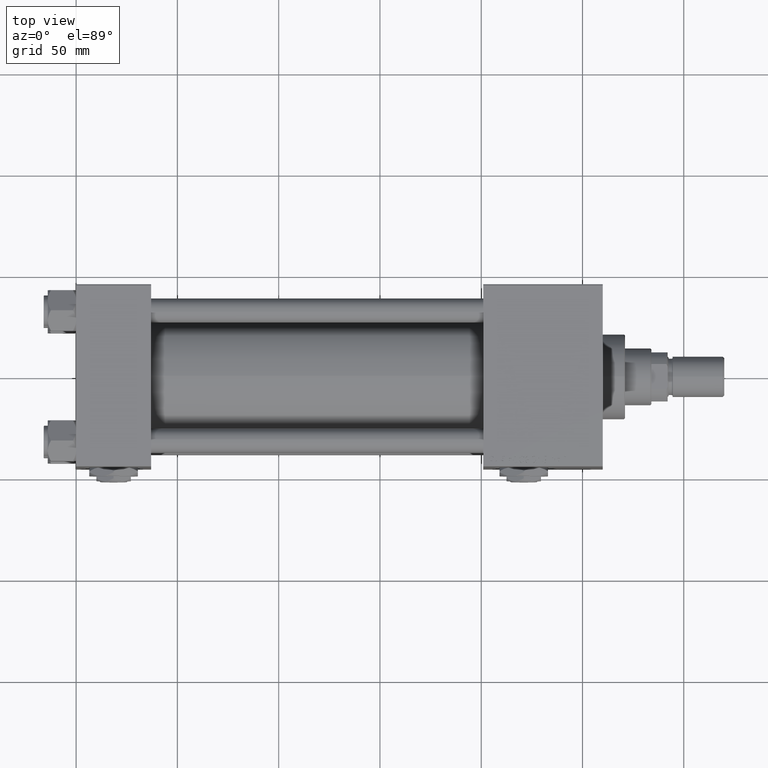
[diagram: clean part render]
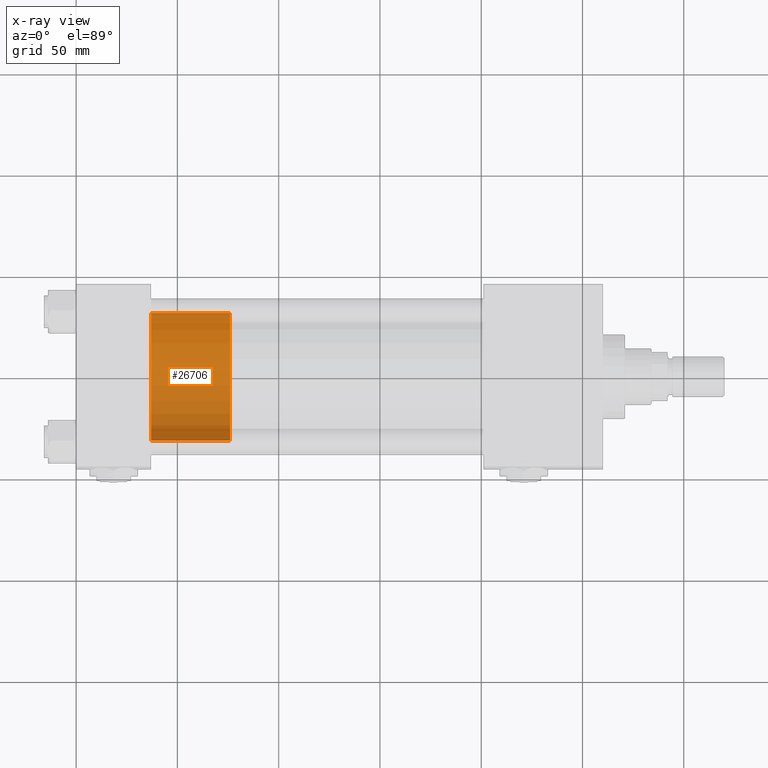
[diagram: x-ray — body ghosted, one internal face saturated and labeled with its STEP entity id]
A machine part, top view, then the same camera in x-ray: the body is ghosted and one INTERNAL B-rep face — a face not visible from any outside direction — is saturated and labeled: STEP entity #26706.
In plain terms, the highlighted cylindrical surface (partial cylindrical patch) has radius 31.5 mm, axis along (-1, 0, 0).
Its self-contained STEP definition (entity closure, byte-faithful):
#967 = CARTESIAN_POINT ( 'NONE',  ( -31.50000000000000000, 0.000000000000000000, 0.000000000000000000 ) ) ;
#2502 = CYLINDRICAL_SURFACE ( 'NONE', #33465, 31.50000000000000000 ) ;
#5221 = EDGE_CURVE ( 'NONE', #46293, #51058, #37347, .T. ) ;
#5903 = CIRCLE ( 'NONE', #37479, 31.50000000000000000 ) ;
#9294 = CARTESIAN_POINT ( 'NONE',  ( 31.50000000000000000, 3.857637417314162689E-15, 39.00000000000000000 ) ) ;
#9801 = EDGE_LOOP ( 'NONE', ( #38887, #10048, #20897, #39785 ) ) ;
#10048 = ORIENTED_EDGE ( 'NONE', *, *, #45507, .T. ) ;
#10504 = CARTESIAN_POINT ( 'NONE',  ( -31.50000000000000000, 0.000000000000000000, 39.00000000000000000 ) ) ;
#14289 = CARTESIAN_POINT ( 'NONE',  ( 0.000000000000000000, 0.000000000000000000, 39.00000000000000000 ) ) ;
#14548 = DIRECTION ( 'NONE',  ( -0.000000000000000000, -0.000000000000000000, -1.000000000000000000 ) ) ;
#19743 = EDGE_CURVE ( 'NONE', #49376, #46293, #5903, .T. ) ;
#20425 = CARTESIAN_POINT ( 'NONE',  ( 31.50000000000000000, 3.857637417314162689E-15, 39.00000000000000000 ) ) ;
#20897 = ORIENTED_EDGE ( 'NONE', *, *, #23954, .T. ) ;
#21714 = VECTOR ( 'NONE', #37616, 1000.000000000000000 ) ;
#23954 = EDGE_CURVE ( 'NONE', #52289, #51058, #29951, .T. ) ;
#24517 = CARTESIAN_POINT ( 'NONE',  ( -31.50000000000000000, 0.000000000000000000, 39.00000000000000000 ) ) ;
#26706 = ADVANCED_FACE ( 'NONE', ( #51709 ), #2502, .T. ) ;
#29909 = VECTOR ( 'NONE', #49060, 1000.000000000000000 ) ;
#29951 = CIRCLE ( 'NONE', #43617, 31.50000000000000000 ) ;
#30604 = DIRECTION ( 'NONE',  ( 0.000000000000000000, 0.000000000000000000, 1.000000000000000000 ) ) ;
#33192 = DIRECTION ( 'NONE',  ( 1.000000000000000000, 0.000000000000000000, 0.000000000000000000 ) ) ;
#33465 = AXIS2_PLACEMENT_3D ( 'NONE', #39415, #14548, #51977 ) ;
#34974 = LINE ( 'NONE', #20425, #29909 ) ;
#36939 = CARTESIAN_POINT ( 'NONE',  ( 0.000000000000000000, 0.000000000000000000, 0.000000000000000000 ) ) ;
#37347 = LINE ( 'NONE', #24517, #21714 ) ;
#37479 = AXIS2_PLACEMENT_3D ( 'NONE', #14289, #30604, #46134 ) ;
#37616 = DIRECTION ( 'NONE',  ( -0.000000000000000000, -0.000000000000000000, -1.000000000000000000 ) ) ;
#38887 = ORIENTED_EDGE ( 'NONE', *, *, #19743, .F. ) ;
#39415 = CARTESIAN_POINT ( 'NONE',  ( 0.000000000000000000, 0.000000000000000000, 39.00000000000000000 ) ) ;
#39785 = ORIENTED_EDGE ( 'NONE', *, *, #5221, .F. ) ;
#41214 = DIRECTION ( 'NONE',  ( 0.000000000000000000, 0.000000000000000000, 1.000000000000000000 ) ) ;
#43617 = AXIS2_PLACEMENT_3D ( 'NONE', #36939, #41214, #33192 ) ;
#45507 = EDGE_CURVE ( 'NONE', #49376, #52289, #34974, .T. ) ;
#46134 = DIRECTION ( 'NONE',  ( 1.000000000000000000, 0.000000000000000000, 0.000000000000000000 ) ) ;
#46293 = VERTEX_POINT ( 'NONE', #10504 ) ;
#49060 = DIRECTION ( 'NONE',  ( -0.000000000000000000, -0.000000000000000000, -1.000000000000000000 ) ) ;
#49376 = VERTEX_POINT ( 'NONE', #9294 ) ;
#51058 = VERTEX_POINT ( 'NONE', #967 ) ;
#51709 = FACE_OUTER_BOUND ( 'NONE', #9801, .T. ) ;
#51977 = DIRECTION ( 'NONE',  ( -1.000000000000000000, 0.000000000000000000, 0.000000000000000000 ) ) ;
#52289 = VERTEX_POINT ( 'NONE', #52378 ) ;
#52378 = CARTESIAN_POINT ( 'NONE',  ( 31.50000000000000000, 3.857637417314162689E-15, 0.000000000000000000 ) ) ;